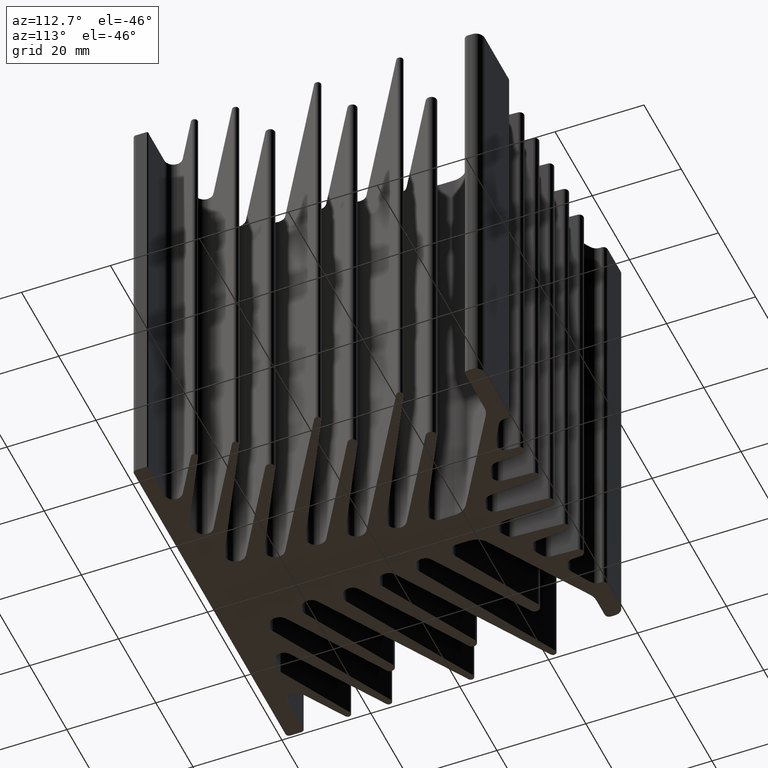
[diagram: clean part render]
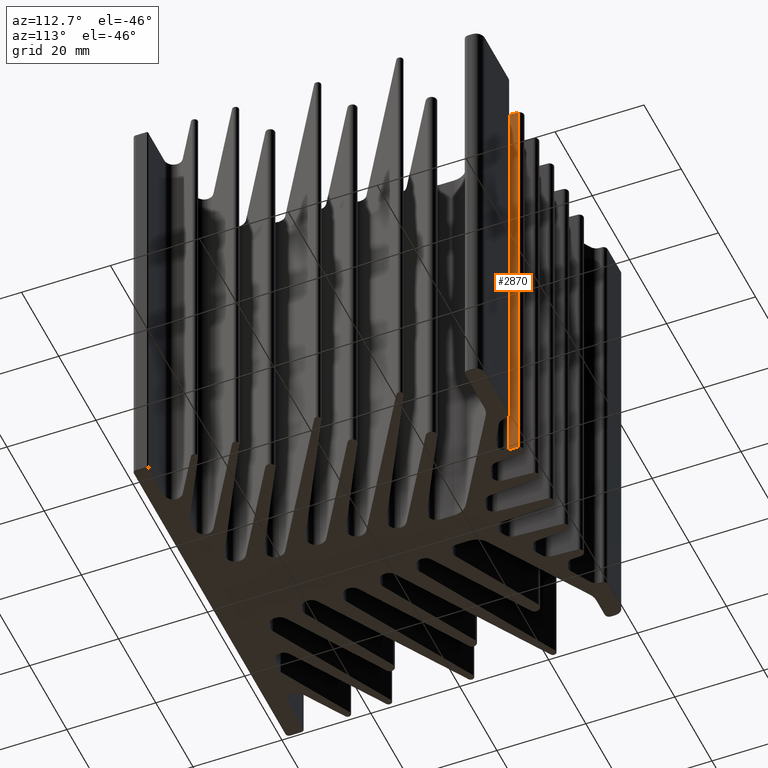
[diagram: same view with one face highlighted and labeled with its STEP entity id]
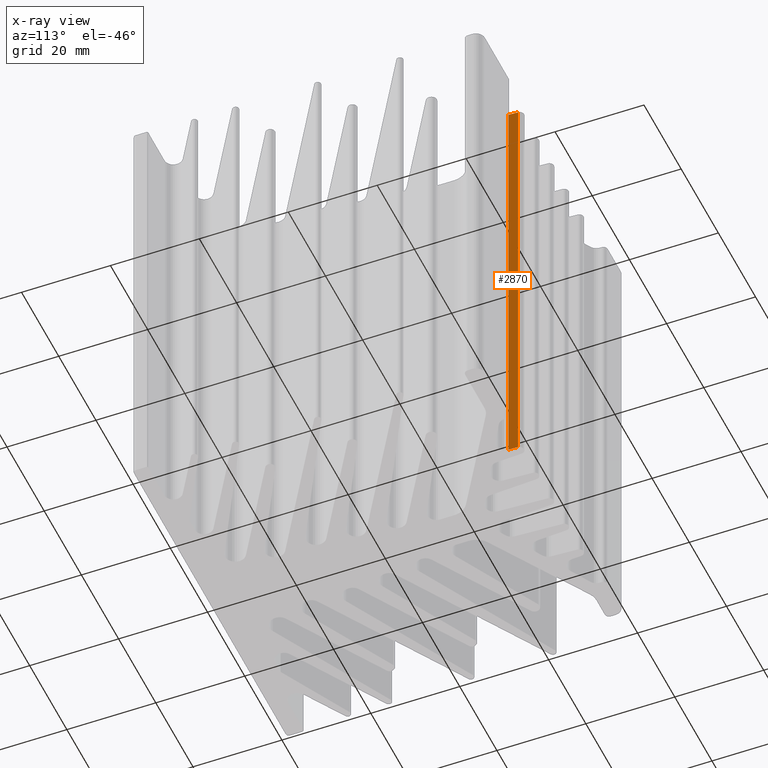
[diagram: x-ray of the same camera — body ghosted, the highlighted face saturated]
A machine part, auxiliary view. The second image highlights one B-rep face of the part: STEP entity #2870.
The next image is the same camera in x-ray: the body ghosted, the highlighted face saturated — about 0% of this face is hidden behind the body in this view.
In plain terms, the highlighted planar face has unit normal (-0.9986, -0.0523, 0).
Its self-contained STEP definition (entity closure, byte-faithful):
#102 = VECTOR ( 'NONE', #3315, 1000.000000000000114 ) ;
#208 = EDGE_CURVE ( 'NONE', #780, #2071, #332, .T. ) ;
#209 = CARTESIAN_POINT ( 'NONE',  ( 17.10915109370172260, 34.84165766598876246, 50.00000000000000000 ) ) ;
#317 = ORIENTED_EDGE ( 'NONE', *, *, #208, .T. ) ;
#332 = LINE ( 'NONE', #4592, #4315 ) ;
#337 = DIRECTION ( 'NONE',  ( -0.9986312651847261135, -0.05230292721782848347, 0.0000000000000000000 ) ) ;
#780 = VERTEX_POINT ( 'NONE', #2565 ) ;
#805 = CARTESIAN_POINT ( 'NONE',  ( 17.10915109370172260, 34.84165766598876246, 50.00000000000000000 ) ) ;
#852 = EDGE_LOOP ( 'NONE', ( #317, #4805, #1569, #1478 ) ) ;
#1056 = PLANE ( 'NONE',  #1059 ) ;
#1059 = AXIS2_PLACEMENT_3D ( 'NONE', #3365, #337, #2920 ) ;
#1347 = LINE ( 'NONE', #1460, #1465 ) ;
#1460 = CARTESIAN_POINT ( 'NONE',  ( 17.10915109370172260, 34.84165766598876246, 50.00000000000000000 ) ) ;
#1465 = VECTOR ( 'NONE', #2206, 1000.000000000000000 ) ;
#1478 = ORIENTED_EDGE ( 'NONE', *, *, #2859, .T. ) ;
#1494 = EDGE_CURVE ( 'NONE', #4213, #2071, #2433, .T. ) ;
#1569 = ORIENTED_EDGE ( 'NONE', *, *, #2080, .F. ) ;
#1785 = VECTOR ( 'NONE', #2907, 1000.000000000000000 ) ;
#2071 = VERTEX_POINT ( 'NONE', #2084 ) ;
#2080 = EDGE_CURVE ( 'NONE', #4208, #4213, #2821, .T. ) ;
#2084 = CARTESIAN_POINT ( 'NONE',  ( 16.99897206958803508, 36.94532994783317292, -50.00000000000000000 ) ) ;
#2206 = DIRECTION ( 'NONE',  ( -0.0000000000000000000, -0.0000000000000000000, -1.000000000000000000 ) ) ;
#2433 = LINE ( 'NONE', #4005, #1785 ) ;
#2565 = CARTESIAN_POINT ( 'NONE',  ( 17.10915109370172260, 34.84165766598876246, -50.00000000000000000 ) ) ;
#2821 = LINE ( 'NONE', #209, #102 ) ;
#2859 = EDGE_CURVE ( 'NONE', #4208, #780, #1347, .T. ) ;
#2870 = ADVANCED_FACE ( 'NONE', ( #4082 ), #1056, .F. ) ;
#2894 = CARTESIAN_POINT ( 'NONE',  ( 16.99897206958803508, 36.94532994783317292, 50.00000000000000000 ) ) ;
#2907 = DIRECTION ( 'NONE',  ( -0.0000000000000000000, -0.0000000000000000000, -1.000000000000000000 ) ) ;
#2920 = DIRECTION ( 'NONE',  ( 0.05230292721782848347, -0.9986312651847261135, 0.0000000000000000000 ) ) ;
#3315 = DIRECTION ( 'NONE',  ( -0.05230292721782848347, 0.9986312651847260025, 0.0000000000000000000 ) ) ;
#3365 = CARTESIAN_POINT ( 'NONE',  ( 17.10915109370172260, 34.84165766598876246, 50.00000000000000000 ) ) ;
#4005 = CARTESIAN_POINT ( 'NONE',  ( 16.99897206958803508, 36.94532994783317292, 50.00000000000000000 ) ) ;
#4082 = FACE_OUTER_BOUND ( 'NONE', #852, .T. ) ;
#4208 = VERTEX_POINT ( 'NONE', #805 ) ;
#4213 = VERTEX_POINT ( 'NONE', #2894 ) ;
#4315 = VECTOR ( 'NONE', #4668, 1000.000000000000114 ) ;
#4592 = CARTESIAN_POINT ( 'NONE',  ( 17.10915109370172260, 34.84165766598876246, -50.00000000000000000 ) ) ;
#4668 = DIRECTION ( 'NONE',  ( -0.05230292721782848347, 0.9986312651847260025, 0.0000000000000000000 ) ) ;
#4805 = ORIENTED_EDGE ( 'NONE', *, *, #1494, .F. ) ;